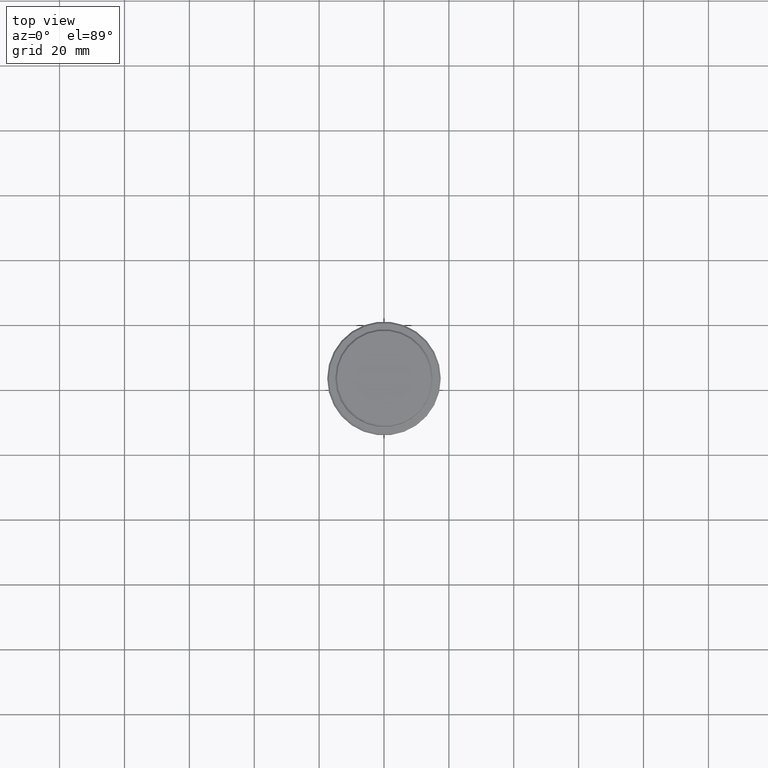
[diagram: clean part render]
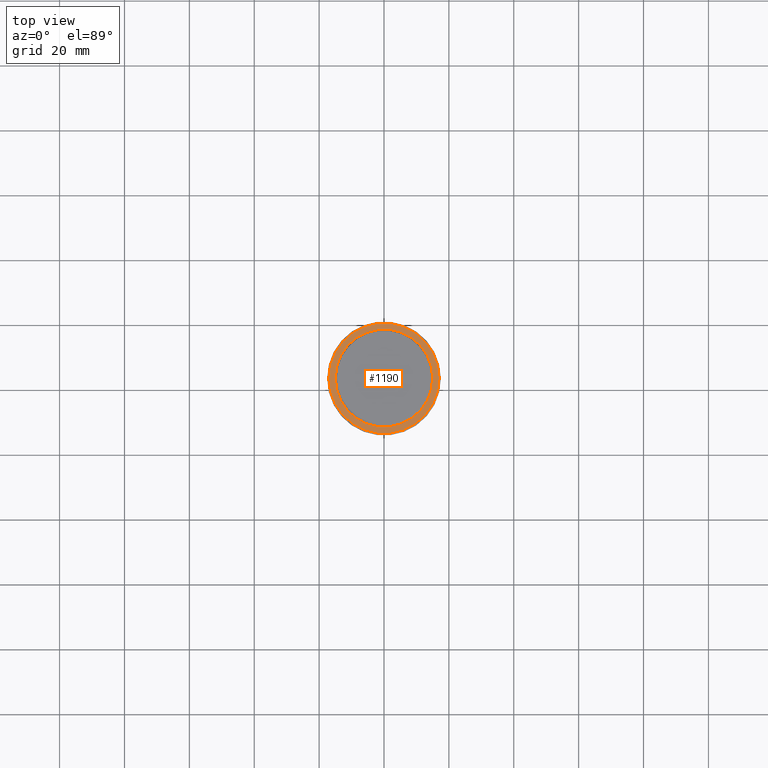
[diagram: same view with one face highlighted and labeled with its STEP entity id]
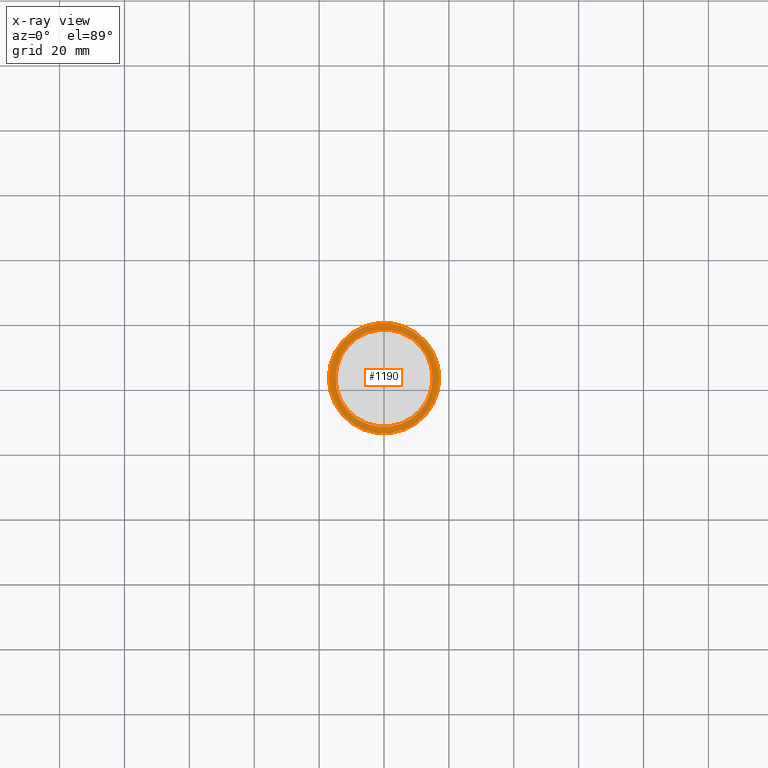
[diagram: x-ray of the same camera — body ghosted, the highlighted face saturated]
A machine part, top view. The second image highlights one B-rep face of the part: STEP entity #1190.
The next image is the same camera in x-ray: the body ghosted, the highlighted face saturated — about 0% of this face is hidden behind the body in this view.
In plain terms, the highlighted planar face has unit normal (0, -0, 1).
Its self-contained STEP definition (entity closure, byte-faithful):
#3 = CARTESIAN_POINT ( 'NONE',  ( 16.99999999999998579, 2.112515728529183278E-15, -9.000000000000001776 ) ) ;
#10 = EDGE_CURVE ( 'NONE', #693, #1116, #618, .T. ) ;
#62 = DIRECTION ( 'NONE',  ( 1.000000000000000000, 0.000000000000000000, 0.000000000000000000 ) ) ;
#84 = EDGE_LOOP ( 'NONE', ( #761, #471 ) ) ;
#90 = DIRECTION ( 'NONE',  ( -0.000000000000000000, -0.000000000000000000, 1.000000000000000000 ) ) ;
#117 = EDGE_LOOP ( 'NONE', ( #866, #1184 ) ) ;
#122 = EDGE_CURVE ( 'NONE', #1116, #693, #900, .T. ) ;
#140 = VERTEX_POINT ( 'NONE', #1027 ) ;
#234 = EDGE_CURVE ( 'NONE', #1317, #140, #1100, .T. ) ;
#262 = AXIS2_PLACEMENT_3D ( 'NONE', #774, #548, #1091 ) ;
#311 = AXIS2_PLACEMENT_3D ( 'NONE', #445, #1401, #872 ) ;
#317 = DIRECTION ( 'NONE',  ( 1.000000000000000000, 0.000000000000000000, 0.000000000000000000 ) ) ;
#374 = EDGE_CURVE ( 'NONE', #140, #1317, #901, .T. ) ;
#445 = CARTESIAN_POINT ( 'NONE',  ( 0.000000000000000000, 0.000000000000000000, -9.000000000000001776 ) ) ;
#471 = ORIENTED_EDGE ( 'NONE', *, *, #10, .T. ) ;
#536 = CARTESIAN_POINT ( 'NONE',  ( 14.99999999999999467, 0.000000000000000000, -9.000000000000001776 ) ) ;
#548 = DIRECTION ( 'NONE',  ( 0.000000000000000000, -0.000000000000000000, 1.000000000000000000 ) ) ;
#618 = CIRCLE ( 'NONE', #1381, 14.99999999999999467 ) ;
#688 = DIRECTION ( 'NONE',  ( 1.000000000000000000, 0.000000000000000000, 0.000000000000000000 ) ) ;
#693 = VERTEX_POINT ( 'NONE', #746 ) ;
#746 = CARTESIAN_POINT ( 'NONE',  ( -14.99999999999999467, 1.836970198721029194E-15, -9.000000000000001776 ) ) ;
#758 = CARTESIAN_POINT ( 'NONE',  ( 0.000000000000000000, 0.000000000000000000, -9.000000000000001776 ) ) ;
#761 = ORIENTED_EDGE ( 'NONE', *, *, #122, .T. ) ;
#774 = CARTESIAN_POINT ( 'NONE',  ( 0.000000000000000000, 14.49999999999999467, -9.000000000000001776 ) ) ;
#778 = FACE_OUTER_BOUND ( 'NONE', #117, .T. ) ;
#793 = CARTESIAN_POINT ( 'NONE',  ( 0.000000000000000000, 0.000000000000000000, -9.000000000000001776 ) ) ;
#810 = DIRECTION ( 'NONE',  ( 0.000000000000000000, 0.000000000000000000, -1.000000000000000000 ) ) ;
#865 = FACE_BOUND ( 'NONE', #84, .T. ) ;
#866 = ORIENTED_EDGE ( 'NONE', *, *, #374, .T. ) ;
#872 = DIRECTION ( 'NONE',  ( 1.000000000000000000, 0.000000000000000000, 0.000000000000000000 ) ) ;
#873 = PLANE ( 'NONE',  #262 ) ;
#900 = CIRCLE ( 'NONE', #1237, 14.99999999999999467 ) ;
#901 = CIRCLE ( 'NONE', #1325, 16.99999999999998579 ) ;
#1027 = CARTESIAN_POINT ( 'NONE',  ( -16.99999999999998579, 0.000000000000000000, -9.000000000000001776 ) ) ;
#1091 = DIRECTION ( 'NONE',  ( 1.000000000000000000, 0.000000000000000000, 0.000000000000000000 ) ) ;
#1100 = CIRCLE ( 'NONE', #311, 16.99999999999998579 ) ;
#1116 = VERTEX_POINT ( 'NONE', #536 ) ;
#1184 = ORIENTED_EDGE ( 'NONE', *, *, #234, .T. ) ;
#1190 = ADVANCED_FACE ( 'NONE', ( #778, #865 ), #873, .T. ) ;
#1199 = DIRECTION ( 'NONE',  ( 0.000000000000000000, 0.000000000000000000, -1.000000000000000000 ) ) ;
#1237 = AXIS2_PLACEMENT_3D ( 'NONE', #793, #810, #688 ) ;
#1296 = CARTESIAN_POINT ( 'NONE',  ( 0.000000000000000000, 0.000000000000000000, -9.000000000000001776 ) ) ;
#1317 = VERTEX_POINT ( 'NONE', #3 ) ;
#1325 = AXIS2_PLACEMENT_3D ( 'NONE', #1296, #90, #62 ) ;
#1381 = AXIS2_PLACEMENT_3D ( 'NONE', #758, #1199, #317 ) ;
#1401 = DIRECTION ( 'NONE',  ( -0.000000000000000000, -0.000000000000000000, 1.000000000000000000 ) ) ;